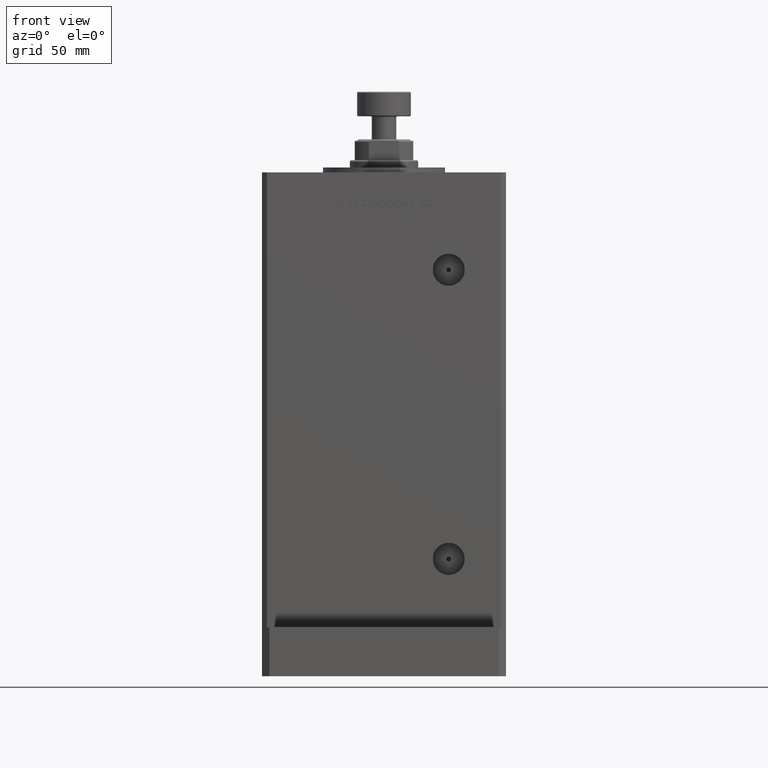
[diagram: clean part render]
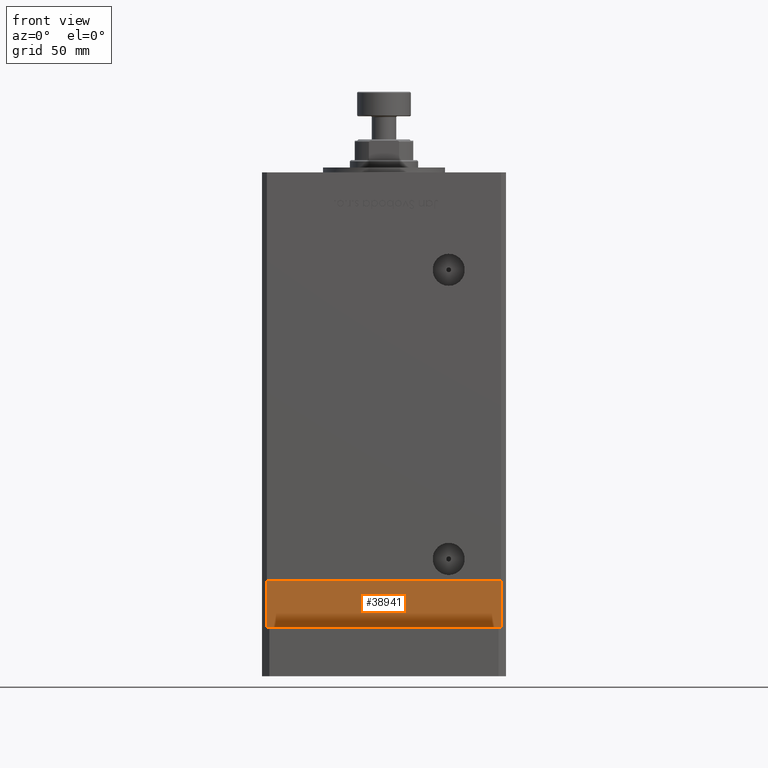
[diagram: same view with one face highlighted and labeled with its STEP entity id]
A machine part, front view. The second image highlights one B-rep face of the part: STEP entity #38941.
In plain terms, the highlighted planar face has unit normal (0, -1, -0).
Its self-contained STEP definition (entity closure, byte-faithful):
#791 = VERTEX_POINT ( 'NONE', #47258 ) ;
#912 = VERTEX_POINT ( 'NONE', #23633 ) ;
#1730 = LINE ( 'NONE', #23083, #48315 ) ;
#7434 = VECTOR ( 'NONE', #45080, 1000.000000000000000 ) ;
#11063 = ORIENTED_EDGE ( 'NONE', *, *, #27994, .T. ) ;
#11757 = EDGE_CURVE ( 'NONE', #23957, #35646, #41530, .T. ) ;
#12098 = LINE ( 'NONE', #28784, #32695 ) ;
#14997 = FACE_OUTER_BOUND ( 'NONE', #44657, .T. ) ;
#17453 = ORIENTED_EDGE ( 'NONE', *, *, #11757, .F. ) ;
#23083 = CARTESIAN_POINT ( 'NONE',  ( 47.99999999999999289, -43.50000000000001421, -19.00000000000000000 ) ) ;
#23350 = DIRECTION ( 'NONE',  ( 0.000000000000000000, 0.000000000000000000, 1.000000000000000000 ) ) ;
#23633 = CARTESIAN_POINT ( 'NONE',  ( 47.99999999999999289, -43.50000000000001421, -19.00000000000000000 ) ) ;
#23957 = VERTEX_POINT ( 'NONE', #43958 ) ;
#23967 = CARTESIAN_POINT ( 'NONE',  ( -47.99999999999999289, -43.50000000000001421, 0.000000000000000000 ) ) ;
#27994 = EDGE_CURVE ( 'NONE', #791, #912, #30097, .T. ) ;
#28784 = CARTESIAN_POINT ( 'NONE',  ( -47.99999999999999289, -43.50000000000001421, -19.00000000000000000 ) ) ;
#30097 = LINE ( 'NONE', #46834, #37568 ) ;
#32695 = VECTOR ( 'NONE', #42774, 1000.000000000000000 ) ;
#34738 = ORIENTED_EDGE ( 'NONE', *, *, #43260, .F. ) ;
#35029 = DIRECTION ( 'NONE',  ( 1.000000000000000000, 0.000000000000000000, 0.000000000000000000 ) ) ;
#35272 = EDGE_CURVE ( 'NONE', #912, #35646, #1730, .T. ) ;
#35646 = VERTEX_POINT ( 'NONE', #39039 ) ;
#37568 = VECTOR ( 'NONE', #35029, 1000.000000000000000 ) ;
#38941 = ADVANCED_FACE ( 'NONE', ( #14997 ), #52807, .T. ) ;
#39039 = CARTESIAN_POINT ( 'NONE',  ( 47.99999999999999289, -43.50000000000001421, 0.000000000000000000 ) ) ;
#39512 = AXIS2_PLACEMENT_3D ( 'NONE', #48428, #52270, #52538 ) ;
#39601 = ORIENTED_EDGE ( 'NONE', *, *, #35272, .T. ) ;
#41530 = LINE ( 'NONE', #23967, #7434 ) ;
#42774 = DIRECTION ( 'NONE',  ( 0.000000000000000000, 0.000000000000000000, 1.000000000000000000 ) ) ;
#43260 = EDGE_CURVE ( 'NONE', #791, #23957, #12098, .T. ) ;
#43958 = CARTESIAN_POINT ( 'NONE',  ( -47.99999999999999289, -43.50000000000001421, 0.000000000000000000 ) ) ;
#44657 = EDGE_LOOP ( 'NONE', ( #17453, #34738, #11063, #39601 ) ) ;
#45080 = DIRECTION ( 'NONE',  ( 1.000000000000000000, 0.000000000000000000, 0.000000000000000000 ) ) ;
#46834 = CARTESIAN_POINT ( 'NONE',  ( -47.99999999999999289, -43.50000000000001421, -19.00000000000000000 ) ) ;
#47258 = CARTESIAN_POINT ( 'NONE',  ( -47.99999999999999289, -43.50000000000001421, -19.00000000000000000 ) ) ;
#48315 = VECTOR ( 'NONE', #23350, 1000.000000000000000 ) ;
#48428 = CARTESIAN_POINT ( 'NONE',  ( -47.99999999999999289, -43.50000000000001421, -19.00000000000000000 ) ) ;
#52270 = DIRECTION ( 'NONE',  ( 0.000000000000000000, -1.000000000000000000, 0.000000000000000000 ) ) ;
#52538 = DIRECTION ( 'NONE',  ( 0.000000000000000000, -0.000000000000000000, -1.000000000000000000 ) ) ;
#52807 = PLANE ( 'NONE',  #39512 ) ;